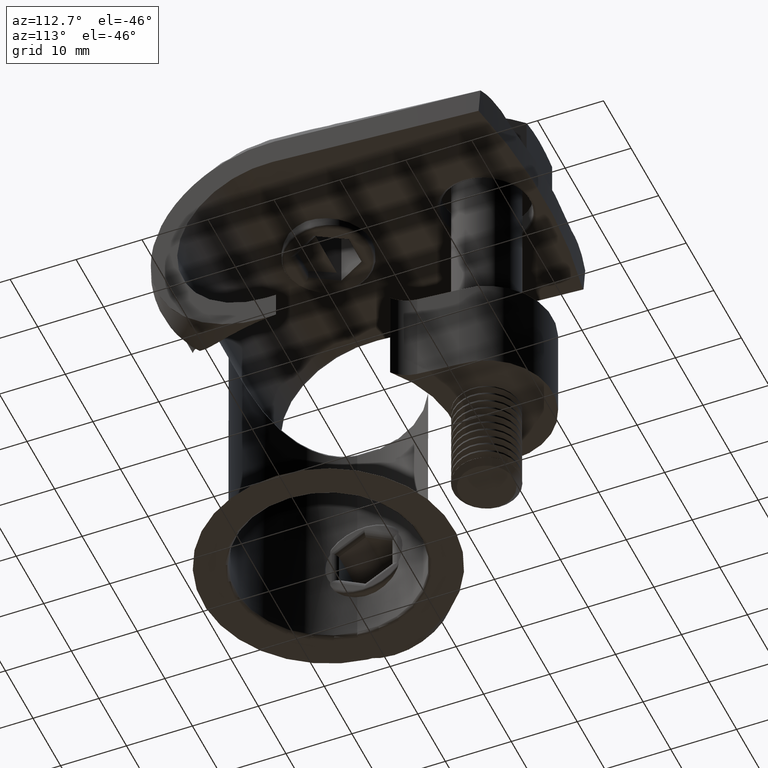
[diagram: clean part render]
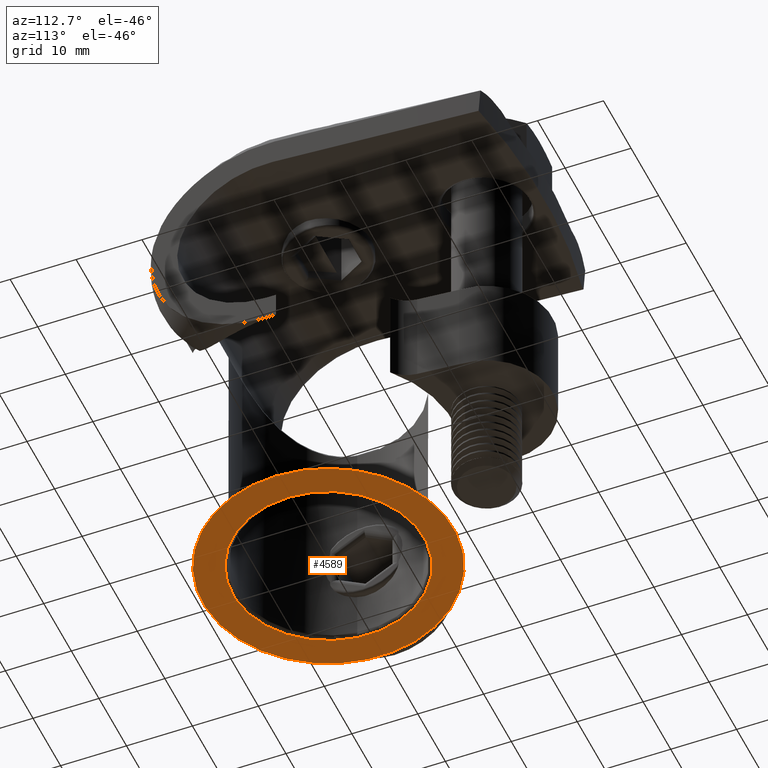
[diagram: same view with one face highlighted and labeled with its STEP entity id]
A machine part, auxiliary view. The second image highlights one B-rep face of the part: STEP entity #4589.
In plain terms, the highlighted planar face has unit normal (0, 0, 1).
Its self-contained STEP definition (entity closure, byte-faithful):
#90 = VERTEX_POINT ( 'NONE', #3716 ) ;
#151 = AXIS2_PLACEMENT_3D ( 'NONE', #5069, #2758, #3677 ) ;
#152 = EDGE_CURVE ( 'NONE', #4205, #4205, #1111, .T. ) ;
#609 = EDGE_LOOP ( 'NONE', ( #3621 ) ) ;
#640 = ORIENTED_EDGE ( 'NONE', *, *, #152, .T. ) ;
#1111 = CIRCLE ( 'NONE', #151, 14.50000000000000000 ) ;
#1205 = CARTESIAN_POINT ( 'NONE',  ( 14.50000000000000000, 19.00000000000000000, -50.00000000000000000 ) ) ;
#1669 = CIRCLE ( 'NONE', #2452, 19.00000000000000000 ) ;
#1811 = DIRECTION ( 'NONE',  ( 0.000000000000000000, 0.000000000000000000, 1.000000000000000000 ) ) ;
#2117 = DIRECTION ( 'NONE',  ( 1.000000000000000000, 0.000000000000000000, -0.000000000000000000 ) ) ;
#2452 = AXIS2_PLACEMENT_3D ( 'NONE', #4224, #1811, #6067 ) ;
#2563 = FACE_OUTER_BOUND ( 'NONE', #609, .T. ) ;
#2758 = DIRECTION ( 'NONE',  ( 0.000000000000000000, 0.000000000000000000, 1.000000000000000000 ) ) ;
#3313 = EDGE_LOOP ( 'NONE', ( #640 ) ) ;
#3425 = FACE_BOUND ( 'NONE', #3313, .T. ) ;
#3621 = ORIENTED_EDGE ( 'NONE', *, *, #5471, .F. ) ;
#3677 = DIRECTION ( 'NONE',  ( 1.000000000000000000, 0.000000000000000000, 0.000000000000000000 ) ) ;
#3716 = CARTESIAN_POINT ( 'NONE',  ( 19.00000000000000000, 19.00000000000000000, -50.00000000000000000 ) ) ;
#3948 = DIRECTION ( 'NONE',  ( 0.000000000000000000, 0.000000000000000000, 1.000000000000000000 ) ) ;
#4205 = VERTEX_POINT ( 'NONE', #1205 ) ;
#4224 = CARTESIAN_POINT ( 'NONE',  ( 0.000000000000000000, 19.00000000000000000, -50.00000000000000000 ) ) ;
#4589 = ADVANCED_FACE ( 'NONE', ( #3425, #2563 ), #4934, .F. ) ;
#4873 = CARTESIAN_POINT ( 'NONE',  ( 0.000000000000000000, 19.00000000000000000, -50.00000000000000000 ) ) ;
#4934 = PLANE ( 'NONE',  #5301 ) ;
#5069 = CARTESIAN_POINT ( 'NONE',  ( 0.000000000000000000, 19.00000000000000000, -50.00000000000000000 ) ) ;
#5301 = AXIS2_PLACEMENT_3D ( 'NONE', #4873, #3948, #2117 ) ;
#5471 = EDGE_CURVE ( 'NONE', #90, #90, #1669, .T. ) ;
#6067 = DIRECTION ( 'NONE',  ( 1.000000000000000000, 0.000000000000000000, 0.000000000000000000 ) ) ;